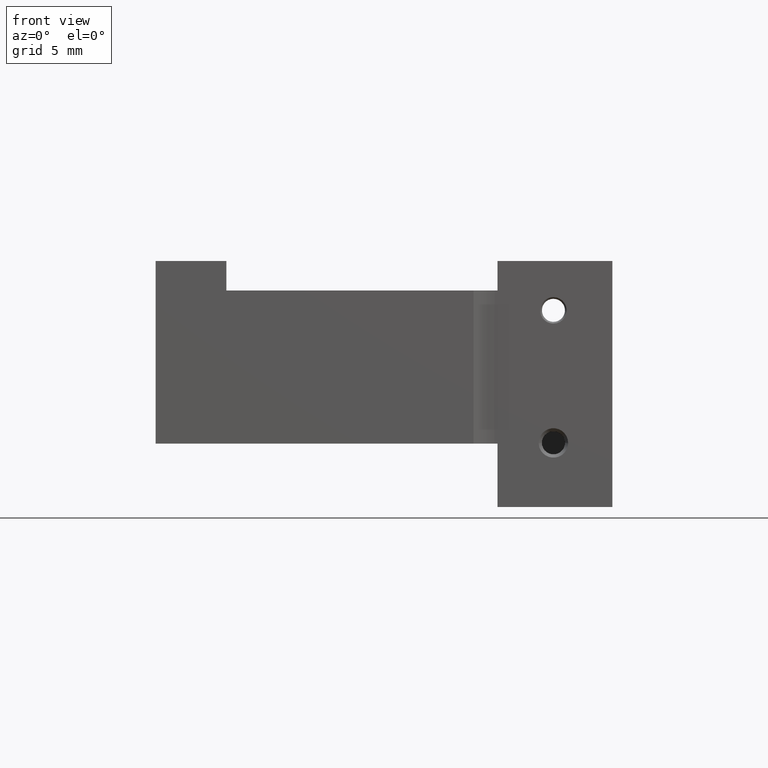
[diagram: clean part render]
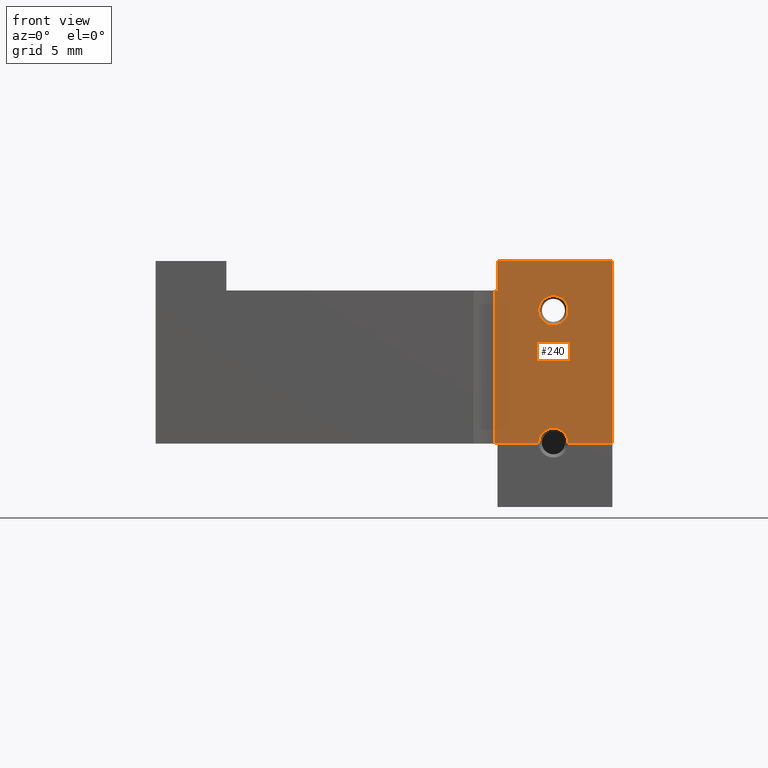
[diagram: same view with one face highlighted and labeled with its STEP entity id]
A machine part, front view. The second image highlights one B-rep face of the part: STEP entity #240.
In plain terms, the highlighted planar face has unit normal (0, -1, 0).
Its self-contained STEP definition (entity closure, byte-faithful):
#151=FACE_BOUND('',#647,.F.);
#240=ADVANCED_FACE('',(#151,#434),#1757,.T.);
#434=FACE_OUTER_BOUND('',#648,.F.);
#647=EDGE_LOOP('',(#1197,#1198));
#648=EDGE_LOOP('',(#1199,#1200,#1201,#1202,#1203,#1204,#1205,#1206,#1207,
#1208,#1209));
#1197=ORIENTED_EDGE('',*,*,#2597,.F.);
#1198=ORIENTED_EDGE('',*,*,#2598,.F.);
#1199=ORIENTED_EDGE('',*,*,#2599,.F.);
#1200=ORIENTED_EDGE('',*,*,#2386,.T.);
#1201=ORIENTED_EDGE('',*,*,#2385,.T.);
#1202=ORIENTED_EDGE('',*,*,#2387,.F.);
#1203=ORIENTED_EDGE('',*,*,#2395,.F.);
#1204=ORIENTED_EDGE('',*,*,#2398,.F.);
#1205=ORIENTED_EDGE('',*,*,#2595,.F.);
#1206=ORIENTED_EDGE('',*,*,#2596,.F.);
#1207=ORIENTED_EDGE('',*,*,#2594,.F.);
#1208=ORIENTED_EDGE('',*,*,#2388,.F.);
#1209=ORIENTED_EDGE('',*,*,#2548,.T.);
#1757=PLANE('',#3578);
#1817=LINE('',#5090,#2087);
#1818=LINE('',#5091,#2088);
#1819=LINE('',#5092,#2089);
#1820=LINE('',#5093,#2090);
#1827=LINE('',#5100,#2097);
#1830=LINE('',#5103,#2100);
#1933=LINE('',#5253,#2203);
#1950=LINE('',#5304,#2220);
#2087=VECTOR('',#3780,1.99999976788384);
#2088=VECTOR('',#3781,0.200000556244165);
#2089=VECTOR('',#3782,7.79999944375583);
#2090=VECTOR('',#3783,2.80130580836736);
#2097=VECTOR('',#3790,12.4000000705615);
#2100=VECTOR('',#3793,3.00130552789123);
#2203=VECTOR('',#3990,0.199999738716418);
#2220=VECTOR('',#4075,10.4000002469793);
#2385=EDGE_CURVE('',#3218,#3217,#1817,.T.);
#2386=EDGE_CURVE('',#3216,#3218,#1818,.T.);
#2387=EDGE_CURVE('',#3215,#3217,#1819,.T.);
#2388=EDGE_CURVE('',#3220,#3278,#1820,.T.);
#2395=EDGE_CURVE('',#3210,#3215,#1827,.T.);
#2398=EDGE_CURVE('',#3277,#3210,#1830,.T.);
#2548=EDGE_CURVE('',#3220,#3222,#1933,.T.);
#2594=EDGE_CURVE('',#3278,#3090,#2903,.T.);
#2595=EDGE_CURVE('',#3089,#3277,#2904,.T.);
#2596=EDGE_CURVE('',#3090,#3089,#2905,.T.);
#2597=EDGE_CURVE('',#3088,#3087,#2906,.T.);
#2598=EDGE_CURVE('',#3087,#3088,#2907,.T.);
#2599=EDGE_CURVE('',#3216,#3222,#1950,.T.);
#2903=CIRCLE('',#3412,1.);
#2904=CIRCLE('',#3413,1.);
#2905=CIRCLE('',#3414,1.);
#2906=CIRCLE('',#3415,1.);
#2907=CIRCLE('',#3416,1.);
#3087=VERTEX_POINT('',#4848);
#3088=VERTEX_POINT('',#4849);
#3089=VERTEX_POINT('',#4850);
#3090=VERTEX_POINT('',#4851);
#3210=VERTEX_POINT('',#4971);
#3215=VERTEX_POINT('',#4976);
#3216=VERTEX_POINT('',#4977);
#3217=VERTEX_POINT('',#4978);
#3218=VERTEX_POINT('',#4979);
#3220=VERTEX_POINT('',#4981);
#3222=VERTEX_POINT('',#4983);
#3277=VERTEX_POINT('',#5038);
#3278=VERTEX_POINT('',#5039);
#3412=AXIS2_PLACEMENT_3D('',#5299,#4065,#4066);
#3413=AXIS2_PLACEMENT_3D('',#5300,#4067,#4068);
#3414=AXIS2_PLACEMENT_3D('',#5301,#4069,#4070);
#3415=AXIS2_PLACEMENT_3D('',#5302,#4071,#4072);
#3416=AXIS2_PLACEMENT_3D('',#5303,#4073,#4074);
#3578=AXIS2_PLACEMENT_3D('',#5580,#4512,#4513);
#3780=DIRECTION('',(0.,0.,1.));
#3781=DIRECTION('',(1.,0.,0.));
#3782=DIRECTION('',(-1.,0.,0.));
#3783=DIRECTION('',(1.,0.,0.));
#3790=DIRECTION('',(0.,0.,1.));
#3793=DIRECTION('',(1.,0.,0.));
#3990=DIRECTION('',(-1.,0.,0.));
#4065=DIRECTION('',(0.,1.,0.));
#4066=DIRECTION('',(-0.998694462512458,0.,-0.051081998267037));
#4067=DIRECTION('',(0.,1.,0.));
#4068=DIRECTION('',(1.,0.,0.));
#4069=DIRECTION('',(0.,1.,0.));
#4070=DIRECTION('',(-1.,0.,0.));
#4071=DIRECTION('',(0.,1.,0.));
#4072=DIRECTION('',(0.,0.,1.));
#4073=DIRECTION('',(0.,1.,0.));
#4074=DIRECTION('',(0.,0.,-1.));
#4075=DIRECTION('',(0.,0.,-1.));
#4512=DIRECTION('',(0.,-1.,0.));
#4513=DIRECTION('',(-1.,0.,0.));
#4848=CARTESIAN_POINT('',(-5.99999999041639,-76.8999999999998,-97.348918016597));
#4849=CARTESIAN_POINT('',(-5.99999999041639,-76.8999999999998,-95.348918016597));
#4850=CARTESIAN_POINT('',(-4.99999999041638,-76.8999999999998,-105.348918016597));
#4851=CARTESIAN_POINT('',(-6.99999999041638,-76.8999999999998,-105.348918016597));
#4971=CARTESIAN_POINT('',(-2.00000000001265,-76.8999999999998,-105.400000014864));
#4976=CARTESIAN_POINT('',(-2.00000005881856,-76.8999999999998,-92.9999999814347));
#4977=CARTESIAN_POINT('',(-10.0000000588186,-76.8999999999998,-94.9999997678847));
#4978=CARTESIAN_POINT('',(-9.79999962018621,-76.8999999999998,-93.0000000000009));
#4979=CARTESIAN_POINT('',(-9.79999962018622,-76.8999999999998,-94.9999997678847));
#4981=CARTESIAN_POINT('',(-9.80000026129622,-76.8999999999998,-105.399999873198));
#4983=CARTESIAN_POINT('',(-10.0000000000126,-76.8999999999998,-105.399999873198));
#5038=CARTESIAN_POINT('',(-5.00130552790389,-76.8999999999998,-105.400000014864));
#5039=CARTESIAN_POINT('',(-6.99869445292885,-76.8999999999998,-105.400000014864));
#5090=CARTESIAN_POINT('',(-9.79999962018622,-76.8999999999998,-94.9999997678847));
#5091=CARTESIAN_POINT('',(-10.0000001764304,-76.8999999999998,-94.9999997678847));
#5092=CARTESIAN_POINT('',(-2.00000017643038,-76.8999999999998,-93.0000000000009));
#5093=CARTESIAN_POINT('',(-9.80000026129622,-76.8999999999998,-105.400000014864));
#5100=CARTESIAN_POINT('',(-2.00000000001264,-76.8999999999998,-105.400000014864));
#5103=CARTESIAN_POINT('',(-5.00130552790388,-76.8999999999998,-105.400000014864));
#5253=CARTESIAN_POINT('',(-9.80000026129622,-76.8999999999998,-105.399999731532));
#5299=CARTESIAN_POINT('',(-5.99999999041638,-76.8999999999998,-105.348918016597));
#5300=CARTESIAN_POINT('',(-5.99999999041638,-76.8999999999998,-105.348918016597));
#5301=CARTESIAN_POINT('',(-5.99999999041638,-76.8999999999998,-105.348918016597));
#5302=CARTESIAN_POINT('',(-5.99999999041639,-76.8999999999998,-96.348918016597));
#5303=CARTESIAN_POINT('',(-5.99999999041639,-76.8999999999998,-96.348918016597));
#5304=CARTESIAN_POINT('',(-10.0000000000126,-76.8999999999998,-94.9999997678847));
#5580=CARTESIAN_POINT('',(-1.83300017643039,-76.8999999999998,-109.866999944302));